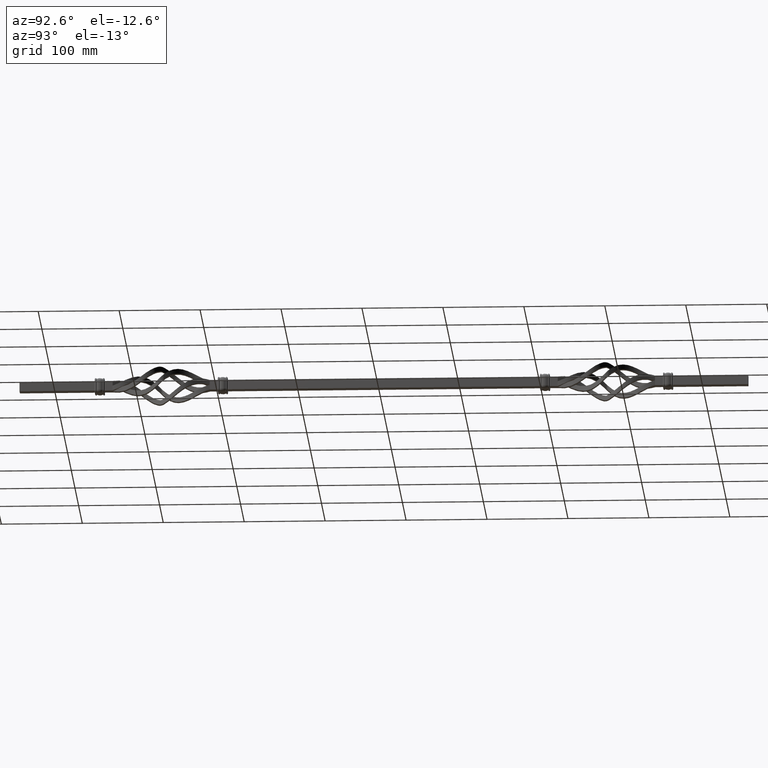
[diagram: clean part render]
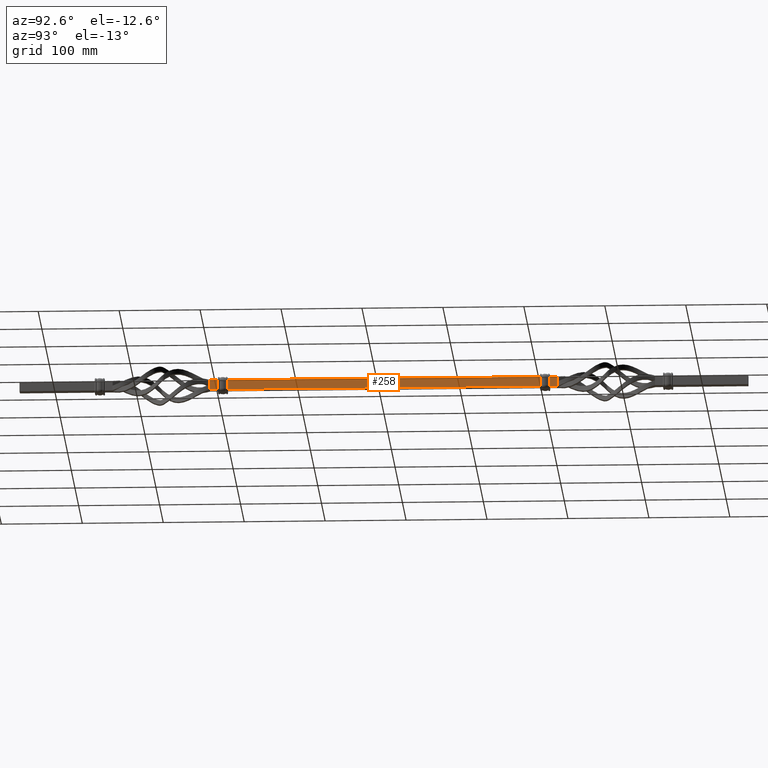
[diagram: same view with one face highlighted and labeled with its STEP entity id]
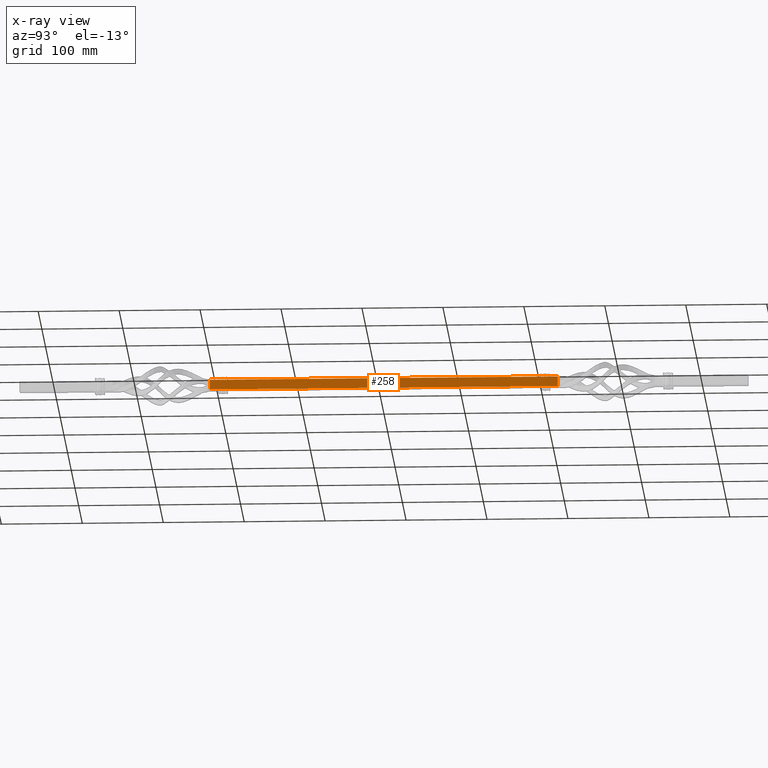
[diagram: x-ray of the same camera — body ghosted, the highlighted face saturated]
A machine part, auxiliary view. The second image highlights one B-rep face of the part: STEP entity #258.
The next image is the same camera in x-ray: the body ghosted, the highlighted face saturated — about 0% of this face is hidden behind the body in this view.
In plain terms, the highlighted planar face has unit normal (1, -0, 0).
Its self-contained STEP definition (entity closure, byte-faithful):
#15 = CARTESIAN_POINT ( 'NONE',  ( 5.999999999999830358, 204.3564495409078461, 5.999999999999938716 ) ) ;
#184 = ORIENTED_EDGE ( 'NONE', *, *, #6616, .T. ) ;
#258 = ADVANCED_FACE ( 'NONE', ( #18213 ), #7448, .T. ) ;
#423 = VERTEX_POINT ( 'NONE', #12745 ) ;
#449 = ORIENTED_EDGE ( 'NONE', *, *, #29119, .T. ) ;
#601 = DIRECTION ( 'NONE',  ( 0.000000000000000000, 0.000000000000000000, -1.000000000000000000 ) ) ;
#665 = VERTEX_POINT ( 'NONE', #10002 ) ;
#667 = ORIENTED_EDGE ( 'NONE', *, *, #4783, .F. ) ;
#918 = CARTESIAN_POINT ( 'NONE',  ( 6.000000000000000000, -205.0000000000000284, -5.900000000000049205 ) ) ;
#947 = VECTOR ( 'NONE', #20254, 1000.000000000000000 ) ;
#969 = CARTESIAN_POINT ( 'NONE',  ( 6.000000000000000000, -204.0000000000000284, 5.900000000000049205 ) ) ;
#1160 = DIRECTION ( 'NONE',  ( -0.000000000000000000, -1.000000000000000000, -0.000000000000000000 ) ) ;
#1163 = EDGE_CURVE ( 'NONE', #14536, #4692, #4655, .T. ) ;
#1341 = VERTEX_POINT ( 'NONE', #4289 ) ;
#1923 = VERTEX_POINT ( 'NONE', #27971 ) ;
#2259 = CARTESIAN_POINT ( 'NONE',  ( 6.000000000000000000, -204.2473656810053058, -5.941145397884167956 ) ) ;
#2278 = ORIENTED_EDGE ( 'NONE', *, *, #1163, .F. ) ;
#2450 = CARTESIAN_POINT ( 'NONE',  ( 6.000000000000000000, 204.0000000000000284, 5.899999999637350001 ) ) ;
#2525 = VECTOR ( 'NONE', #24516, 1000.000000000000000 ) ;
#2850 = VERTEX_POINT ( 'NONE', #969 ) ;
#2868 = EDGE_LOOP ( 'NONE', ( #8415, #18568, #2278, #8944, #23904, #12104, #22814, #13891, #20865, #26681, #17769, #22336, #449, #21651, #7800, #667, #12273, #15694, #30967, #184, #13805, #8969 ) ) ;
#3251 = DIRECTION ( 'NONE',  ( -0.000000000000000000, -1.000000000000000000, -0.000000000000000000 ) ) ;
#3408 = EDGE_CURVE ( 'NONE', #2850, #14536, #3571, .T. ) ;
#3438 = CARTESIAN_POINT ( 'NONE',  ( 6.000000000009051426, -193.6435504595885675, 5.999999999999938716 ) ) ;
#3571 = LINE ( 'NONE', #13438, #15501 ) ;
#4099 = DIRECTION ( 'NONE',  ( 0.000000000000000000, 1.000000000000000000, 0.000000000000000000 ) ) ;
#4289 = CARTESIAN_POINT ( 'NONE',  ( 5.999999999727976707, 215.0000000000000284, -6.000000000000022204 ) ) ;
#4655 = B_SPLINE_CURVE_WITH_KNOTS ( 'NONE', 3,
 ( #10427, #10744, #27394, #3438 ),
 .UNSPECIFIED., .F., .F.,
 ( 4, 4 ),
 ( 0.001680737425675979781, 0.002051352701520084854 ),
 .UNSPECIFIED. ) ;
#4692 = VERTEX_POINT ( 'NONE', #19040 ) ;
#4783 = EDGE_CURVE ( 'NONE', #23204, #19917, #29620, .T. ) ;
#5794 = VERTEX_POINT ( 'NONE', #20083 ) ;
#5817 = DIRECTION ( 'NONE',  ( 0.000000000000000000, 1.000000000000000000, 0.000000000000000000 ) ) ;
#6148 = CARTESIAN_POINT ( 'NONE',  ( 5.999999999999822364, -204.3564495403943511, 5.999999999999938716 ) ) ;
#6207 = VECTOR ( 'NONE', #1160, 1000.000000000000000 ) ;
#6240 = LINE ( 'NONE', #10688, #947 ) ;
#6420 = EDGE_CURVE ( 'NONE', #23204, #1341, #20181, .T. ) ;
#6461 = VERTEX_POINT ( 'NONE', #12555 ) ;
#6616 = EDGE_CURVE ( 'NONE', #5794, #423, #18339, .T. ) ;
#6802 = B_SPLINE_CURVE_WITH_KNOTS ( 'NONE', 3,
 ( #21446, #14160, #2259, #30843 ),
 .UNSPECIFIED., .F., .F.,
 ( 4, 4 ),
 ( 0.001680737425675983034, 0.002051352701505405191 ),
 .UNSPECIFIED. ) ;
#6963 = LINE ( 'NONE', #24954, #6207 ) ;
#7179 = VECTOR ( 'NONE', #21300, 1000.000000000000000 ) ;
#7292 = VECTOR ( 'NONE', #25588, 1000.000000000000000 ) ;
#7293 = CARTESIAN_POINT ( 'NONE',  ( 6.000000000000000000, 193.7526530271239267, 5.941135303799096157 ) ) ;
#7448 = PLANE ( 'NONE',  #24588 ) ;
#7700 = EDGE_CURVE ( 'NONE', #19695, #423, #12842, .T. ) ;
#7800 = ORIENTED_EDGE ( 'NONE', *, *, #24976, .F. ) ;
#7954 = CARTESIAN_POINT ( 'NONE',  ( 5.999999999999822364, -204.3564495403943511, 5.999999999999938716 ) ) ;
#8415 = ORIENTED_EDGE ( 'NONE', *, *, #13785, .F. ) ;
#8944 = ORIENTED_EDGE ( 'NONE', *, *, #3408, .F. ) ;
#8969 = ORIENTED_EDGE ( 'NONE', *, *, #19077, .F. ) ;
#9000 = VERTEX_POINT ( 'NONE', #30165 ) ;
#9001 = VERTEX_POINT ( 'NONE', #30379 ) ;
#9332 = DIRECTION ( 'NONE',  ( 0.000000000000000000, 1.000000000000000000, 0.000000000000000000 ) ) ;
#9405 = VERTEX_POINT ( 'NONE', #7954 ) ;
#9416 = CARTESIAN_POINT ( 'NONE',  ( 6.000000000000000000, -193.6435504595882264, -5.999999999999938716 ) ) ;
#9647 = EDGE_CURVE ( 'NONE', #6461, #23870, #15045, .T. ) ;
#9888 = LINE ( 'NONE', #25699, #7292 ) ;
#10002 = CARTESIAN_POINT ( 'NONE',  ( 5.999999999727998024, 215.0000000000000284, -6.284666409917664021E-14 ) ) ;
#10288 = LINE ( 'NONE', #12434, #30817 ) ;
#10427 = CARTESIAN_POINT ( 'NONE',  ( 6.000000000000000000, -194.0000000000000000, 5.900000000000050093 ) ) ;
#10688 = CARTESIAN_POINT ( 'NONE',  ( 5.999999999727976707, 215.0000000000000284, -2.094888803305880329E-14 ) ) ;
#10744 = CARTESIAN_POINT ( 'NONE',  ( 6.000000000000000000, -193.8739104759196437, 5.900000000000050093 ) ) ;
#11676 = CARTESIAN_POINT ( 'NONE',  ( 6.000000000000000000, 194.0000000000000000, 5.899999999637350889 ) ) ;
#12010 = VECTOR ( 'NONE', #22005, 1000.000000000000000 ) ;
#12104 = ORIENTED_EDGE ( 'NONE', *, *, #16764, .T. ) ;
#12273 = ORIENTED_EDGE ( 'NONE', *, *, #6420, .T. ) ;
#12290 = CARTESIAN_POINT ( 'NONE',  ( 6.000000000000000000, 204.0000000000000284, -5.899999999637356218 ) ) ;
#12376 = EDGE_CURVE ( 'NONE', #9405, #2850, #20456, .T. ) ;
#12428 = CARTESIAN_POINT ( 'NONE',  ( 6.000000000000000000, -194.0000000000000000, -5.900000000000049205 ) ) ;
#12434 = CARTESIAN_POINT ( 'NONE',  ( 6.000000000000000000, -215.0000000000000284, 6.284666409917641302E-14 ) ) ;
#12522 = VECTOR ( 'NONE', #3251, 1000.000000000000000 ) ;
#12555 = CARTESIAN_POINT ( 'NONE',  ( 6.000000000000000000, 194.0000000000000000, -5.899999999637350001 ) ) ;
#12745 = CARTESIAN_POINT ( 'NONE',  ( 5.999999999999830358, 204.3564495409078461, 5.999999999999938716 ) ) ;
#12808 = VERTEX_POINT ( 'NONE', #17691 ) ;
#12842 = B_SPLINE_CURVE_WITH_KNOTS ( 'NONE', 3,
 ( #2450, #26419, #16855, #15 ),
 .UNSPECIFIED., .F., .F.,
 ( 4, 4 ),
 ( 0.001730514864789055741, 0.002100971035898038970 ),
 .UNSPECIFIED. ) ;
#13170 = EDGE_CURVE ( 'NONE', #22549, #15221, #17799, .T. ) ;
#13330 = EDGE_CURVE ( 'NONE', #665, #1341, #6240, .T. ) ;
#13340 = CARTESIAN_POINT ( 'NONE',  ( 6.000000000000000000, -204.2472008152188607, 5.941056446958591586 ) ) ;
#13347 = CARTESIAN_POINT ( 'NONE',  ( 6.000000000000000000, 204.0000000000000284, 5.899999999637350001 ) ) ;
#13438 = CARTESIAN_POINT ( 'NONE',  ( 6.000000000000000000, -205.0000000000000284, 5.900000000000050093 ) ) ;
#13519 = CARTESIAN_POINT ( 'NONE',  ( 6.000000000000000000, 194.0000000000000000, -5.899999999637350001 ) ) ;
#13651 = EDGE_CURVE ( 'NONE', #22729, #9001, #23761, .T. ) ;
#13785 = EDGE_CURVE ( 'NONE', #21194, #18566, #30475, .T. ) ;
#13805 = ORIENTED_EDGE ( 'NONE', *, *, #7700, .F. ) ;
#13891 = ORIENTED_EDGE ( 'NONE', *, *, #28175, .T. ) ;
#14160 = CARTESIAN_POINT ( 'NONE',  ( 6.000000000000000000, -204.1260895240753825, -5.900000000000047429 ) ) ;
#14312 = EDGE_CURVE ( 'NONE', #21194, #4692, #6963, .T. ) ;
#14391 = CARTESIAN_POINT ( 'NONE',  ( 5.999999999999828582, 193.6435504591014762, 5.999999999999938716 ) ) ;
#14536 = VERTEX_POINT ( 'NONE', #23811 ) ;
#14960 = DIRECTION ( 'NONE',  ( -1.047444401652940007E-14, -0.000000000000000000, -1.000000000000000000 ) ) ;
#14962 = CARTESIAN_POINT ( 'NONE',  ( 6.000000000000000000, 204.0000000000000284, -5.899999999637356218 ) ) ;
#15045 = B_SPLINE_CURVE_WITH_KNOTS ( 'NONE', 3,
 ( #13519, #20601, #25401, #23835 ),
 .UNSPECIFIED., .F., .F.,
 ( 4, 4 ),
 ( 0.001730514864789053139, 0.002100971035890116488 ),
 .UNSPECIFIED. ) ;
#15221 = VERTEX_POINT ( 'NONE', #22718 ) ;
#15501 = VECTOR ( 'NONE', #5817, 1000.000000000000000 ) ;
#15694 = ORIENTED_EDGE ( 'NONE', *, *, #13330, .F. ) ;
#15737 = CARTESIAN_POINT ( 'NONE',  ( 6.000000000000000000, -204.1260421705784154, 5.900000000000049205 ) ) ;
#15933 = DIRECTION ( 'NONE',  ( -0.000000000000000000, -1.000000000000000000, -0.000000000000000000 ) ) ;
#16052 = CARTESIAN_POINT ( 'NONE',  ( 5.999999999999830358, 16.97056274847694013, 5.999999999999938716 ) ) ;
#16672 = CARTESIAN_POINT ( 'NONE',  ( 6.000000000000000000, 194.0000000000000000, 5.899999999637350889 ) ) ;
#16764 = EDGE_CURVE ( 'NONE', #9405, #22549, #30713, .T. ) ;
#16773 = CARTESIAN_POINT ( 'NONE',  ( 6.000000000000000000, 193.8746500252494229, 5.899999999637380199 ) ) ;
#16855 = CARTESIAN_POINT ( 'NONE',  ( 6.000000000000000000, 204.2472308575945590, 5.941072655494708421 ) ) ;
#17319 = CARTESIAN_POINT ( 'NONE',  ( 5.999999999727998024, 215.0000000000000284, -6.284666409917664021E-14 ) ) ;
#17645 = VECTOR ( 'NONE', #15933, 1000.000000000000000 ) ;
#17691 = CARTESIAN_POINT ( 'NONE',  ( 6.000000000000000000, -193.6435504595882264, -5.999999999999938716 ) ) ;
#17769 = ORIENTED_EDGE ( 'NONE', *, *, #28132, .F. ) ;
#17799 = LINE ( 'NONE', #24429, #29737 ) ;
#18130 = CARTESIAN_POINT ( 'NONE',  ( 6.000000000000000000, -204.0000000000000284, 5.900000000000049205 ) ) ;
#18182 = CARTESIAN_POINT ( 'NONE',  ( 6.000000000000000000, 193.6435504591011352, -5.999999999999938716 ) ) ;
#18213 = FACE_OUTER_BOUND ( 'NONE', #2868, .T. ) ;
#18339 = LINE ( 'NONE', #26473, #12010 ) ;
#18566 = VERTEX_POINT ( 'NONE', #11676 ) ;
#18568 = ORIENTED_EDGE ( 'NONE', *, *, #14312, .T. ) ;
#18899 = CARTESIAN_POINT ( 'NONE',  ( 6.000000000000000000, -215.0000000000000284, -5.999999999999938716 ) ) ;
#19018 = CARTESIAN_POINT ( 'NONE',  ( 6.000000000005006662, 204.3564495409081587, -5.999999999999938716 ) ) ;
#19040 = CARTESIAN_POINT ( 'NONE',  ( 6.000000000009051426, -193.6435504595885675, 5.999999999999938716 ) ) ;
#19077 = EDGE_CURVE ( 'NONE', #18566, #19695, #9888, .T. ) ;
#19695 = VERTEX_POINT ( 'NONE', #13347 ) ;
#19917 = VERTEX_POINT ( 'NONE', #12290 ) ;
#20017 = VECTOR ( 'NONE', #9332, 1000.000000000000000 ) ;
#20083 = CARTESIAN_POINT ( 'NONE',  ( 5.999999999728059308, 215.0000000000000284, 5.999999999999938716 ) ) ;
#20181 = LINE ( 'NONE', #18899, #7179 ) ;
#20254 = DIRECTION ( 'NONE',  ( 0.000000000000000000, 0.000000000000000000, -1.000000000000000000 ) ) ;
#20401 = CARTESIAN_POINT ( 'NONE',  ( 6.000000000000000000, 205.0000000000000284, -5.899999999637350001 ) ) ;
#20456 = B_SPLINE_CURVE_WITH_KNOTS ( 'NONE', 3,
 ( #6148, #13340, #15737, #18130 ),
 .UNSPECIFIED., .F., .F.,
 ( 4, 4 ),
 ( 0.001310261336107012946, 0.001680737425675980865 ),
 .UNSPECIFIED. ) ;
#20601 = CARTESIAN_POINT ( 'NONE',  ( 6.000000000000000000, 193.8743949879769275, -5.899999999637379311 ) ) ;
#20865 = ORIENTED_EDGE ( 'NONE', *, *, #13651, .T. ) ;
#20950 = CARTESIAN_POINT ( 'NONE',  ( 6.000000000000000000, -215.0000000000000284, -5.999999999999938716 ) ) ;
#21194 = VERTEX_POINT ( 'NONE', #21766 ) ;
#21204 = CARTESIAN_POINT ( 'NONE',  ( 6.000000000000000000, -193.7527991847713054, -5.941056446961886728 ) ) ;
#21300 = DIRECTION ( 'NONE',  ( 0.000000000000000000, 1.000000000000000000, 0.000000000000000000 ) ) ;
#21446 = CARTESIAN_POINT ( 'NONE',  ( 6.000000000000000000, -204.0000000000000284, -5.900000000000119371 ) ) ;
#21477 = LINE ( 'NONE', #918, #12522 ) ;
#21628 = DIRECTION ( 'NONE',  ( 1.000000000000000000, -0.000000000000000000, 0.000000000000000000 ) ) ;
#21651 = ORIENTED_EDGE ( 'NONE', *, *, #9647, .F. ) ;
#21766 = CARTESIAN_POINT ( 'NONE',  ( 5.999999999999828582, 193.6435504591014762, 5.999999999999938716 ) ) ;
#22005 = DIRECTION ( 'NONE',  ( -0.000000000000000000, -1.000000000000000000, -0.000000000000000000 ) ) ;
#22020 = DIRECTION ( 'NONE',  ( 0.000000000000000000, 0.000000000000000000, -1.000000000000000000 ) ) ;
#22336 = ORIENTED_EDGE ( 'NONE', *, *, #30694, .F. ) ;
#22549 = VERTEX_POINT ( 'NONE', #24479 ) ;
#22718 = CARTESIAN_POINT ( 'NONE',  ( 6.000000000000000000, -215.0000000000000284, 6.284666409917641302E-14 ) ) ;
#22729 = VERTEX_POINT ( 'NONE', #23750 ) ;
#22814 = ORIENTED_EDGE ( 'NONE', *, *, #13170, .T. ) ;
#23022 = DIRECTION ( 'NONE',  ( -0.000000000000000000, -1.000000000000000000, 0.000000000000000000 ) ) ;
#23204 = VERTEX_POINT ( 'NONE', #19018 ) ;
#23609 = CARTESIAN_POINT ( 'NONE',  ( 6.000000000000000000, -215.0000000000000284, -5.999999999999938716 ) ) ;
#23750 = CARTESIAN_POINT ( 'NONE',  ( 6.000000000000000000, -215.0000000000000284, -5.999999999999937828 ) ) ;
#23761 = LINE ( 'NONE', #20950, #25248 ) ;
#23811 = CARTESIAN_POINT ( 'NONE',  ( 6.000000000000000000, -194.0000000000000000, 5.900000000000050093 ) ) ;
#23819 = LINE ( 'NONE', #17319, #2525 ) ;
#23835 = CARTESIAN_POINT ( 'NONE',  ( 6.000000000000000000, 193.6435504591011352, -5.999999999999938716 ) ) ;
#23870 = VERTEX_POINT ( 'NONE', #18182 ) ;
#23904 = ORIENTED_EDGE ( 'NONE', *, *, #12376, .F. ) ;
#24244 = CARTESIAN_POINT ( 'NONE',  ( 6.000000000000000000, 204.2473469728814450, -5.941135303800896494 ) ) ;
#24429 = CARTESIAN_POINT ( 'NONE',  ( 5.999999999999938716, -215.0000000000000284, -6.371402583716416023E-14 ) ) ;
#24479 = CARTESIAN_POINT ( 'NONE',  ( 6.000000000000000000, -215.0000000000000284, 5.999999999999937828 ) ) ;
#24516 = DIRECTION ( 'NONE',  ( -1.047444401652940007E-14, -0.000000000000000000, -1.000000000000000000 ) ) ;
#24588 = AXIS2_PLACEMENT_3D ( 'NONE', #28710, #21628, #22020 ) ;
#24954 = CARTESIAN_POINT ( 'NONE',  ( 5.999999999999830358, 16.97056274847694013, 5.999999999999938716 ) ) ;
#24976 = EDGE_CURVE ( 'NONE', #19917, #6461, #29064, .T. ) ;
#25248 = VECTOR ( 'NONE', #4099, 1000.000000000000000 ) ;
#25401 = CARTESIAN_POINT ( 'NONE',  ( 6.000000000000000000, 193.7527691424105853, -5.941072655493005783 ) ) ;
#25588 = DIRECTION ( 'NONE',  ( 0.000000000000000000, 1.000000000000000000, -0.000000000000000000 ) ) ;
#25699 = CARTESIAN_POINT ( 'NONE',  ( 6.000000000000000000, 205.0000000000000284, 5.899999999637350889 ) ) ;
#26041 = EDGE_CURVE ( 'NONE', #5794, #665, #23819, .T. ) ;
#26070 = CARTESIAN_POINT ( 'NONE',  ( 6.000000000000000000, -193.8739578294163834, -5.900000000000049205 ) ) ;
#26419 = CARTESIAN_POINT ( 'NONE',  ( 6.000000000000000000, 204.1256050120257726, 5.899999999637378423 ) ) ;
#26473 = CARTESIAN_POINT ( 'NONE',  ( 5.999999999999830358, 16.97056274847694013, 5.999999999999938716 ) ) ;
#26614 = CARTESIAN_POINT ( 'NONE',  ( 6.000000000000000000, 204.1253499747533908, -5.899999999637377535 ) ) ;
#26681 = ORIENTED_EDGE ( 'NONE', *, *, #26917, .F. ) ;
#26744 = B_SPLINE_CURVE_WITH_KNOTS ( 'NONE', 3,
 ( #9416, #21204, #26070, #12428 ),
 .UNSPECIFIED., .F., .F.,
 ( 4, 4 ),
 ( 0.001310261336091702276, 0.001680737425675982383 ),
 .UNSPECIFIED. ) ;
#26821 = CARTESIAN_POINT ( 'NONE',  ( 6.000000000005006662, 204.3564495409081587, -5.999999999999938716 ) ) ;
#26917 = EDGE_CURVE ( 'NONE', #1923, #9001, #6802, .T. ) ;
#27394 = CARTESIAN_POINT ( 'NONE',  ( 6.000000000000000000, -193.7526343189852867, 5.941145397887339641 ) ) ;
#27971 = CARTESIAN_POINT ( 'NONE',  ( 6.000000000000000000, -204.0000000000000284, -5.900000000000119371 ) ) ;
#28132 = EDGE_CURVE ( 'NONE', #9000, #1923, #21477, .T. ) ;
#28175 = EDGE_CURVE ( 'NONE', #15221, #22729, #10288, .T. ) ;
#28710 = CARTESIAN_POINT ( 'NONE',  ( 6.000000000000000000, -215.0000000000000284, 6.284666409917641302E-14 ) ) ;
#29064 = LINE ( 'NONE', #20401, #30579 ) ;
#29119 = EDGE_CURVE ( 'NONE', #12808, #23870, #30101, .T. ) ;
#29620 = B_SPLINE_CURVE_WITH_KNOTS ( 'NONE', 3,
 ( #26821, #24244, #26614, #14962 ),
 .UNSPECIFIED., .F., .F.,
 ( 4, 4 ),
 ( 0.001360810894009455716, 0.001730514864789056608 ),
 .UNSPECIFIED. ) ;
#29737 = VECTOR ( 'NONE', #14960, 1000.000000000000000 ) ;
#30101 = LINE ( 'NONE', #23609, #20017 ) ;
#30165 = CARTESIAN_POINT ( 'NONE',  ( 6.000000000000000000, -194.0000000000000000, -5.900000000000049205 ) ) ;
#30379 = CARTESIAN_POINT ( 'NONE',  ( 6.000000000000000000, -204.3564495403946921, -5.999999999999938716 ) ) ;
#30475 = B_SPLINE_CURVE_WITH_KNOTS ( 'NONE', 3,
 ( #14391, #7293, #16773, #16672 ),
 .UNSPECIFIED., .F., .F.,
 ( 4, 4 ),
 ( 0.001360810894017742924, 0.001730514864789052054 ),
 .UNSPECIFIED. ) ;
#30579 = VECTOR ( 'NONE', #23022, 1000.000000000000000 ) ;
#30694 = EDGE_CURVE ( 'NONE', #12808, #9000, #26744, .T. ) ;
#30713 = LINE ( 'NONE', #16052, #17645 ) ;
#30817 = VECTOR ( 'NONE', #601, 1000.000000000000000 ) ;
#30843 = CARTESIAN_POINT ( 'NONE',  ( 6.000000000000000000, -204.3564495403946921, -5.999999999999938716 ) ) ;
#30967 = ORIENTED_EDGE ( 'NONE', *, *, #26041, .F. ) ;